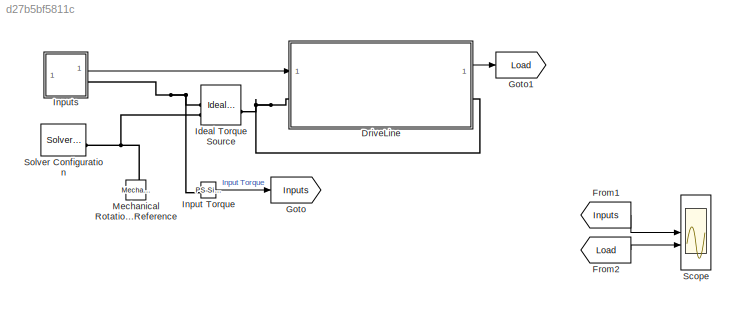
MODEL slx_d27b5bf5811c
KIND model
CONFIG AbsTol = auto
CONFIG EnableMultiTasking = off
CONFIG FixedStep = auto
CONFIG MaxStep = auto
CONFIG MinStep = auto
CONFIG PreLoadFcn = DriveLineTestHarnessParams;
CONFIG RelTol = 1e-3
CONFIG SampleTimeConstraint = Unconstrained
CONFIG SolverName = VariableStepAuto
CONFIG StartTime = 0.0
CONFIG StopTime = 1200
BLOCK [SubSystem] DriveLine
  ReferencedSubsystem = DrivelineWithBraking
  VariantControl = Driveline == 1
BLOCK [From] From1
  GotoTag = Inputs
BLOCK [From] From2
  GotoTag = Load
BLOCK [Goto] Goto
  GotoTag = Inputs
BLOCK [Goto] Goto1
  GotoTag = Load
BLOCK [Reference] Ideal Torque Source  REF=fl_lib/Mechanical/Mechanical Sources/Ideal Torque Source
  SourceBlock = fl_lib/Mechanical/Mechanical Sources/Ideal Torque Source
  SourceType = Ideal Torque Source
BLOCK [Reference] Input Torque  REF=nesl_utility/PS-Simulink
Converter
  SourceBlock = nesl_utility/PS-Simulink\nConverter
  SourceType = PS-Simulink\nConverter
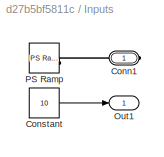
BLOCK [SubSystem] Inputs
BLOCK [PMIOPort] Inputs/Conn1
  Side = Right
BLOCK [Constant] Inputs/Constant
  Value = 10
BLOCK [Outport] Inputs/Out1
BLOCK [Reference] Inputs/PS Ramp  REF=fl_lib/Physical Signals/Sources/PS Ramp
  SourceBlock = fl_lib/Physical Signals/Sources/PS Ramp
  SourceType = PS Ramp
BLOCK [Reference] Mechanical Rotational Reference  REF=fl_lib/Mechanical/Rotational Elements/Mechanical
Rotational Reference
  NameLocation = right
  SourceBlock = fl_lib/Mechanical/Rotational Elements/Mechanical\nRotational Reference
  SourceType = Mechanical\nRotational Reference
BLOCK [Scope] Scope
  Floating = off
  NumInputPorts = 2
  ScopeSpecificationString = Simulink.scopes.TimeScopeBlockCfg('CurrentConfiguration', extmgr.ConfigurationSet(extmgr.Configuration('Core','General UI',true),extmgr.Configuration('Core','Source UI',true),extmgr.Configuration('Sources','WiredSimulink',true),extmgr.Configuration('Visuals','Time Domain',true,'SerializedDisplays',{struct('MinYLimReal','-150.00000','MaxYLimReal','1350.00000','YLabelReal','','MinYLimMag',' 0.00000'...<+2111ch>
BLOCK [Reference] Solver Configuration  REF=nesl_utility/Solver
Configuration
  SourceBlock = nesl_utility/Solver\nConfiguration
  SourceType = Solver\nConfiguration
LINE DriveLine:1 -> Goto1:1
LINE From1:1 -> Scope:1
LINE From2:1 -> Scope:2
LINE Input Torque:1 -> Goto:1
LINE Inputs/Constant:1 -> Inputs/Out1:1
LINE Inputs:1 -> DriveLine:1
PNET net1: DriveLine:LConn1 -- DriveLine:RConn1 -- Ideal Torque Source:LConn1
PNET net2: Ideal Torque Source:RConn1 -- Input Torque:LConn1 -- Inputs:RConn1
PNET net3: Ideal Torque Source:RConn2 -- Mechanical Rotational Reference:LConn1 -- Solver Configuration:RConn1
PLINE Inputs/Conn1:RConn1 -- Inputs/PS Ramp:RConn1
note: PNET lines group multi-terminal physical nets as a canonical sorted terminal list (undirected conserving connections); 2-terminal nets keep the pairwise PLINE form
